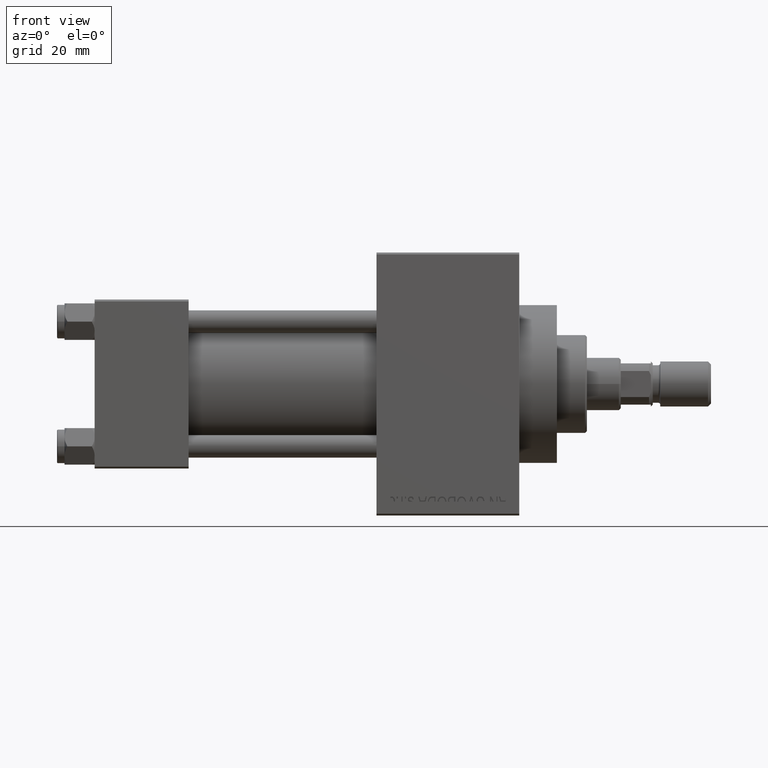
[diagram: clean part render]
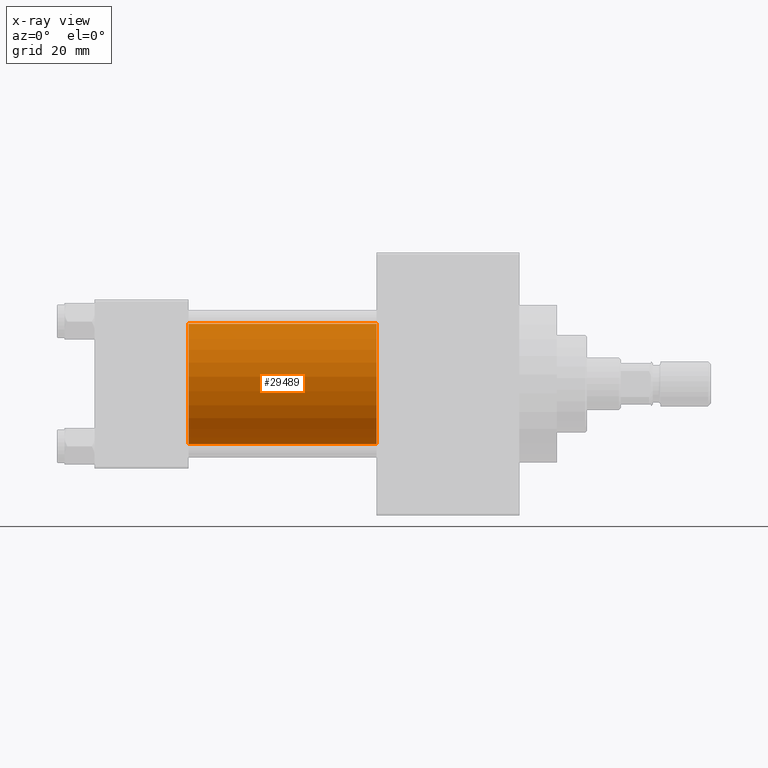
[diagram: x-ray — body ghosted, one internal face saturated and labeled with its STEP entity id]
A machine part, front view, then the same camera in x-ray: the body is ghosted and one INTERNAL B-rep face — a face not visible from any outside direction — is saturated and labeled: STEP entity #29489.
In plain terms, the highlighted cylindrical surface (partial cylindrical patch) has radius 16 mm, axis along (-1, -0, -0).
Its self-contained STEP definition (entity closure, byte-faithful):
#1126 = VERTEX_POINT ( 'NONE', #43246 ) ;
#1696 = CARTESIAN_POINT ( 'NONE',  ( 75.00000000000001421, -6.426503353294456087E-16, -16.00000000000000000 ) ) ;
#2246 = EDGE_CURVE ( 'NONE', #9537, #42780, #8172, .T. ) ;
#2983 = ORIENTED_EDGE ( 'NONE', *, *, #11262, .T. ) ;
#4589 = DIRECTION ( 'NONE',  ( 1.000000000000000000, 0.000000000000000000, 0.000000000000000000 ) ) ;
#5270 = EDGE_CURVE ( 'NONE', #1126, #9537, #10019, .T. ) ;
#7130 = ORIENTED_EDGE ( 'NONE', *, *, #5270, .F. ) ;
#8172 = CIRCLE ( 'NONE', #31403, 16.00000000000000000 ) ;
#9537 = VERTEX_POINT ( 'NONE', #46825 ) ;
#9946 = ORIENTED_EDGE ( 'NONE', *, *, #31931, .T. ) ;
#10019 = LINE ( 'NONE', #22061, #33916 ) ;
#10175 = CARTESIAN_POINT ( 'NONE',  ( 75.00000000000001421, -6.426503353294456087E-16, -16.00000000000000000 ) ) ;
#11262 = EDGE_CURVE ( 'NONE', #39647, #42780, #33239, .T. ) ;
#11839 = CARTESIAN_POINT ( 'NONE',  ( 75.00000000000001421, -2.602085213965210642E-15, 0.000000000000000000 ) ) ;
#12243 = DIRECTION ( 'NONE',  ( 1.000000000000000000, 0.000000000000000000, 0.000000000000000000 ) ) ;
#12330 = CYLINDRICAL_SURFACE ( 'NONE', #32233, 16.00000000000000000 ) ;
#12497 = CARTESIAN_POINT ( 'NONE',  ( 25.00000000000000000, -2.602085213965210642E-15, 0.000000000000000000 ) ) ;
#15603 = DIRECTION ( 'NONE',  ( -1.000000000000000000, -0.000000000000000000, -0.000000000000000000 ) ) ;
#17309 = DIRECTION ( 'NONE',  ( -1.000000000000000000, -0.000000000000000000, -0.000000000000000000 ) ) ;
#22061 = CARTESIAN_POINT ( 'NONE',  ( 75.00000000000001421, -2.602085213965210642E-15, 16.00000000000000000 ) ) ;
#27124 = DIRECTION ( 'NONE',  ( 0.000000000000000000, 0.000000000000000000, 1.000000000000000000 ) ) ;
#29489 = ADVANCED_FACE ( 'NONE', ( #46644 ), #12330, .F. ) ;
#31292 = DIRECTION ( 'NONE',  ( 0.000000000000000000, 0.000000000000000000, -1.000000000000000000 ) ) ;
#31403 = AXIS2_PLACEMENT_3D ( 'NONE', #12497, #12243, #31292 ) ;
#31931 = EDGE_CURVE ( 'NONE', #1126, #39647, #36294, .T. ) ;
#32233 = AXIS2_PLACEMENT_3D ( 'NONE', #11839, #15603, #27124 ) ;
#33225 = VECTOR ( 'NONE', #45256, 1000.000000000000000 ) ;
#33239 = LINE ( 'NONE', #10175, #33225 ) ;
#33916 = VECTOR ( 'NONE', #17309, 1000.000000000000000 ) ;
#36294 = CIRCLE ( 'NONE', #45921, 16.00000000000000000 ) ;
#39495 = CARTESIAN_POINT ( 'NONE',  ( 25.00000000000000000, -6.426503353294456087E-16, -16.00000000000000000 ) ) ;
#39588 = ORIENTED_EDGE ( 'NONE', *, *, #2246, .F. ) ;
#39647 = VERTEX_POINT ( 'NONE', #1696 ) ;
#42448 = CARTESIAN_POINT ( 'NONE',  ( 75.00000000000001421, -2.602085213965210642E-15, 0.000000000000000000 ) ) ;
#42780 = VERTEX_POINT ( 'NONE', #39495 ) ;
#42932 = DIRECTION ( 'NONE',  ( 0.000000000000000000, 0.000000000000000000, -1.000000000000000000 ) ) ;
#43246 = CARTESIAN_POINT ( 'NONE',  ( 75.00000000000001421, -2.602085213965210642E-15, 16.00000000000000000 ) ) ;
#45256 = DIRECTION ( 'NONE',  ( -1.000000000000000000, -0.000000000000000000, -0.000000000000000000 ) ) ;
#45921 = AXIS2_PLACEMENT_3D ( 'NONE', #42448, #4589, #42932 ) ;
#46644 = FACE_OUTER_BOUND ( 'NONE', #49284, .T. ) ;
#46825 = CARTESIAN_POINT ( 'NONE',  ( 25.00000000000000000, -2.602085213965210642E-15, 16.00000000000000000 ) ) ;
#49284 = EDGE_LOOP ( 'NONE', ( #9946, #2983, #39588, #7130 ) ) ;